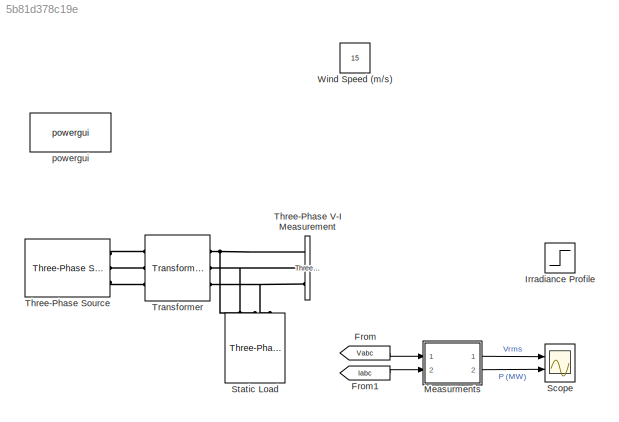
MODEL slx_5b81d378c19e
KIND model
CONFIG AbsTol = auto
CONFIG EnableMultiTasking = off
CONFIG FixedStep = auto
CONFIG MaxStep = auto
CONFIG MinStep = auto
CONFIG RelTol = 1e-3
CONFIG SampleTimeConstraint = Unconstrained
CONFIG Solver = ode23tb
CONFIG SolverName = ode23tb
CONFIG StartTime = 0.0
CONFIG StopTime = 10.0
BLOCK [From] From
  GotoTag = Vabc
  TagVisibility = global
BLOCK [From] From1
  GotoTag = Iabc
  TagVisibility = global
BLOCK [Step] Irradiance Profile
  After = 250e3
  Before = 500e3
  SampleTime = 0
  Time = 5
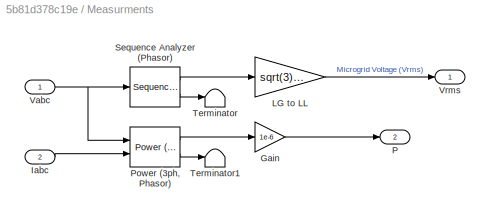
BLOCK [SubSystem] Measurments
  Ports = [2, 2]
  RequestExecContextInheritance = off
BLOCK [Gain] Measurments/Gain
  Gain = 1e-6
  OutDataTypeStr = Inherit: Inherit via internal rule
  ParamDataTypeStr = Inherit: Inherit via internal rule
  SaturateOnIntegerOverflow = off
BLOCK [Inport] Measurments/Iabc
  IconDisplay = Port number
  Port = 2
BLOCK [Gain] Measurments/LG to LL
  Gain = sqrt(3)/sqrt(2)
  OutDataTypeStr = Inherit: Inherit via internal rule
  ParamDataTypeStr = Inherit: Inherit via internal rule
  SaturateOnIntegerOverflow = off
BLOCK [Outport] Measurments/P
  IconDisplay = Port number
  Port = 2
BLOCK [Reference] Measurments/Power (3ph, Phasor)  REF=powerlib_meascontrol/Measurements/Power
(3ph, Phasor)
  Ports = [2, 2]
  SourceBlock = powerlib_meascontrol/Measurements/Power\n(3ph, Phasor)
  SourceProductBaseCode = PS
  SourceProductName = Simscape Power Systems
  SourceType = Power (3ph, Phasor)
BLOCK [Reference] Measurments/Sequence Analyzer (Phasor)  REF=powerlib_meascontrol/Measurements/Sequence Analyzer
(Phasor)
  Ports = [1, 2]
  SourceBlock = powerlib_meascontrol/Measurements/Sequence Analyzer\n(Phasor)
  SourceProductBaseCode = PS
  SourceProductName = Simscape Power Systems
  SourceType = Sequence Analyzer (Phasor)
BLOCK [Terminator] Measurments/Terminator
BLOCK [Terminator] Measurments/Terminator1
BLOCK [Inport] Measurments/Vabc
  IconDisplay = Port number
BLOCK [Outport] Measurments/Vrms
  IconDisplay = Port number
BLOCK [Scope] Scope
  Floating = off
  NumInputPorts = 2
  Ports = [2]
  ScopeSpecificationString = Simulink.scopes.TimeScopeBlockCfg('CurrentConfiguration', extmgr.ConfigurationSet(extmgr.Configuration('Core','General UI',true),extmgr.Configuration('Core','Source UI',true),extmgr.Configuration('Sources','WiredSimulink',true),extmgr.Configuration('Visuals','Time Domain',true,'SerializedDisplays',{struct('MinYLimReal','0','MaxYLimReal','6000','YLabelReal','','MinYLimMag','3753.72117','MaxYLimMag'...<+1994ch>
BLOCK [Reference] Static Load  REF=powerlib/Elements/Three-Phase
Series RLC Load
  Ports = [0, 0, 0, 0, 0, 3]
  SourceBlock = powerlib/Elements/Three-Phase\nSeries RLC Load
  SourceProductBaseCode = PS
  SourceProductName = Simscape Electrical
  SourceType = Three-Phase Series RLC Load
BLOCK [Reference] Three-Phase Source  REF=powerlib/Electrical
Sources/Three-Phase Source
  Ports = [0, 0, 0, 0, 0, 0, 3]
  SourceBlock = powerlib/Electrical\nSources/Three-Phase Source
  SourceProductBaseCode = PS
  SourceProductName = Simscape Power Systems
  SourceType = Three-Phase Source
BLOCK [Reference] Three-Phase V-I Measurement  REF=powerlib/Measurements/Three-Phase
V-I Measurement
  Ports = [0, 0, 0, 0, 0, 3, 3]
  SourceBlock = powerlib/Measurements/Three-Phase\nV-I Measurement
  SourceProductBaseCode = PS
  SourceProductName = Simscape Power Systems
  SourceType = Three-Phase VI Measurement
BLOCK [Reference] Transformer  REF=microgridLibrary/Transformer
  Ports = [0, 0, 0, 0, 0, 3, 3]
  SourceBlock = microgridLibrary/Transformer
BLOCK [Constant] Wind Speed (m//s)
  Value = 15
BLOCK [Reference] powergui  REF=powerlib/powergui
  Ports = []
  Priority = 1
  SourceBlock = powerlib/powergui
  SourceProductBaseCode = PS
  SourceProductName = Simscape Power Systems
  SourceType = PSB option menu block
LINE From1:1 -> Measurments:2
LINE From:1 -> Measurments:1
LINE Measurments/Gain:1 -> Measurments/P:1
LINE Measurments/Iabc:1 -> Measurments/Power (3ph, Phasor):2
LINE Measurments/LG to LL:1 -> Measurments/Vrms:1
LINE Measurments/Power (3ph, Phasor):1 -> Measurments/Gain:1
LINE Measurments/Power (3ph, Phasor):2 -> Measurments/Terminator1:1
LINE Measurments/Sequence Analyzer (Phasor):1 -> Measurments/LG to LL:1
LINE Measurments/Sequence Analyzer (Phasor):2 -> Measurments/Terminator:1
NET Measurments/Vabc:1 -> Measurments/Power (3ph, Phasor):1, Measurments/Sequence Analyzer (Phasor):1
LINE Measurments:1 -> Scope:1
LINE Measurments:2 -> Scope:2
PNET net1: Static Load:LConn1 -- Three-Phase V-I Measurement:RConn1 -- Transformer:RConn1
PNET net2: Static Load:LConn2 -- Three-Phase V-I Measurement:RConn2 -- Transformer:RConn2
PNET net3: Static Load:LConn3 -- Three-Phase V-I Measurement:RConn3 -- Transformer:RConn3
PLINE Three-Phase Source:RConn1 -- Transformer:LConn1
PLINE Three-Phase Source:RConn2 -- Transformer:LConn2
PLINE Three-Phase Source:RConn3 -- Transformer:LConn3
note: NET lines group one-source signal fan-out (src -> all destinations, sorted); 1:1 wires keep LINE; PNET lines group multi-terminal physical nets as a canonical sorted terminal list (undirected conserving connections); 2-terminal nets keep the pairwise PLINE form
